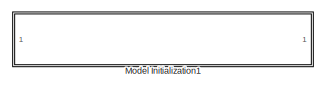
[diagram: root canvas - part 1/2, top center region]
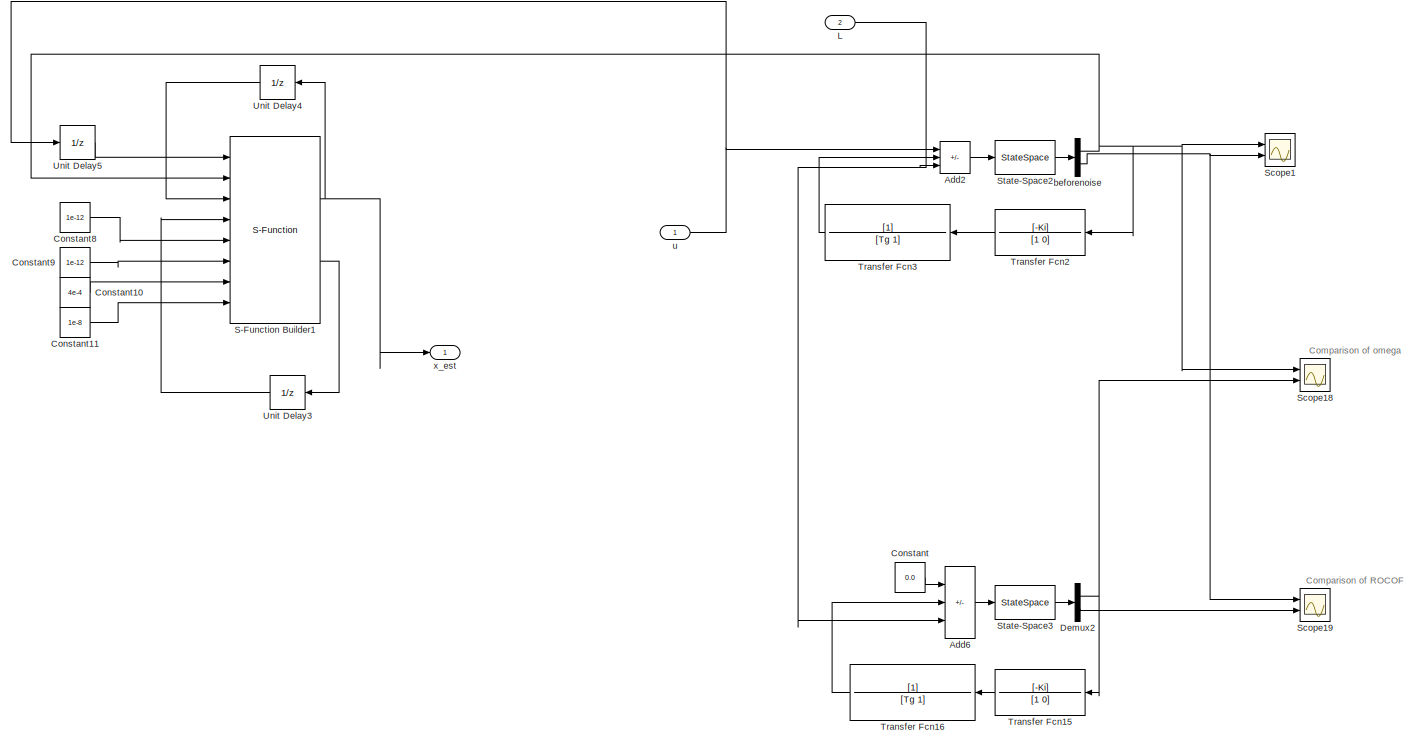
[diagram: root canvas - part 2/2, most of the canvas]
MODEL slx_1f61be367522
KIND model
CONFIG AbsTol = auto
CONFIG EnableMultiTasking = off
CONFIG FixedStep = auto
CONFIG InitFcn = M = 4; D = 1.5/100; Rp = 0.05; Tg = 0.2; Ki = 1.8;
CONFIG MaxStep = 1e-3
CONFIG MinStep = auto
CONFIG RelTol = 1e-3
CONFIG SampleTimeConstraint = Unconstrained
CONFIG SolverName = FixedStepAuto
CONFIG StartTime = 0.0
CONFIG StopTime = 100
BLOCK [Sum] Add2
  IconShape = rectangular
  Inputs = ++-
  Ports = [3, 1]
BLOCK [Sum] Add6
  IconShape = rectangular
  Inputs = ++-
  Ports = [3, 1]
BLOCK [Constant] Constant
  Value = 0.0
BLOCK [Constant] Constant10
  Value = 4e-4
BLOCK [Constant] Constant11
  Value = 1e-8
BLOCK [Constant] Constant8
  Value = 1e-12
BLOCK [Constant] Constant9
  Value = 1e-12
BLOCK [Demux] Demux2
  Outputs = 2
  Ports = [1, 2]
BLOCK [Inport] L
  Port = 2
BLOCK [SubSystem] Model Initialization1
  CopyFcn = set_param(gcb,'LinkStatus','inactive')
  Ports = []
  RequestExecContextInheritance = off
BLOCK [S-Function] S-Function Builder1
  CopyFcn = set_param(gcbh,'LinkStatus','none')
  EnableBusSupport = off
  FunctionName = KF_Sfun
  InitFcn = try, set_param(gcb,'FunctionName','KF_Sfun'), end
  OpenFcn = sfunctionwizard(gcbh)
  Ports = [8, 2]
  PreSaveFcn = try, set_param(gcb,'FunctionName','KF_Sfun'), end
  SFcnIsStateOwnerBlock = off
  SFunctionDeploymentMode = off
  SFunctionModules = KF_Sfun_wrapper EKF_Func EKF_Func_Call
BLOCK [Scope] Scope1
  Floating = off
  NumInputPorts = 2
  Ports = [2]
  ScopeSpecificationString = Simulink.scopes.TimeScopeBlockCfg('CurrentConfiguration', extmgr.ConfigurationSet(extmgr.Configuration('Core','General UI',true),extmgr.Configuration('Core','Source UI',true),extmgr.Configuration('Sources','WiredSimulink',true,'DataLoggingVariableName','ScopeData1'),extmgr.Configuration('Visuals','Time Domain',true,'SerializedDisplays',{struct('MinYLimReal','-0.04429','MaxYLimReal','0.00465','YLab...<+1689ch>
BLOCK [Scope] Scope18
  Floating = off
  NumInputPorts = 2
  Ports = [2]
  ScopeSpecificationString = Simulink.scopes.TimeScopeBlockCfg('CurrentConfiguration', extmgr.ConfigurationSet(extmgr.Configuration('Core','General UI',true),extmgr.Configuration('Core','Source UI',true),extmgr.Configuration('Sources','WiredSimulink',true,'DataLoggingVariableName','ScopeData2'),extmgr.Configuration('Visuals','Time Domain',true,'SerializedDisplays',{struct('MinYLimReal','-0.01949','MaxYLimReal','-0.01843','YLa...<+1714ch>
BLOCK [Scope] Scope19
  Floating = off
  NumInputPorts = 2
  Ports = [2]
  ScopeSpecificationString = Simulink.scopes.TimeScopeBlockCfg('CurrentConfiguration', extmgr.ConfigurationSet(extmgr.Configuration('Core','General UI',true),extmgr.Configuration('Core','Source UI',true),extmgr.Configuration('Sources','WiredSimulink',true,'DataLoggingVariableName','ScopeData3'),extmgr.Configuration('Visuals','Time Domain',true,'SerializedDisplays',{struct('MinYLimReal','-0.11763','MaxYLimReal','0.03534','YLab...<+1685ch>
BLOCK [StateSpace] State-Space2
  A = [0 1;-(D/(M*Tg)+1/(Rp*M*Tg)) -(D/M + 1/Tg)]
  B = [0;1/(M*Tg)]
  C = eye(2)
  D = zeros(2,1)
  InitialCondition = 0
  Ports = [1, 1]
BLOCK [StateSpace] State-Space3
  A = [0 1;-(D/(M*Tg)+1/(Rp*M*Tg)) -(D/M + 1/Tg)]
  B = [0;1/(M*Tg)]
  C = eye(2)
  D = zeros(2,1)
  InitialCondition = 0
  Ports = [1, 1]
BLOCK [TransferFcn] Transfer Fcn15
  Denominator = [1 0]
  NameLocation = top
  Numerator = [-Ki]
BLOCK [TransferFcn] Transfer Fcn16
  Denominator = [Tg 1]
  NameLocation = top
BLOCK [TransferFcn] Transfer Fcn2
  Denominator = [1 0]
  NameLocation = top
  Numerator = [-Ki]
BLOCK [TransferFcn] Transfer Fcn3
  Denominator = [Tg 1]
  NameLocation = top
BLOCK [UnitDelay] Unit Delay3
  HasFrameUpgradeWarning = on
  InitialCondition = 1*diag([1, 1, 1])
  SampleTime = 0.02
BLOCK [UnitDelay] Unit Delay4
  HasFrameUpgradeWarning = on
  SampleTime = 0.02
BLOCK [UnitDelay] Unit Delay5
  HasFrameUpgradeWarning = on
  SampleTime = 0.02
BLOCK [Demux] beforenoise
  Outputs = 2
  Ports = [1, 2]
BLOCK [Inport] u
BLOCK [Outport] x_est
ANNOTATION (root): Comparison of ROCOF
ANNOTATION (root): Comparison of omega
LINE Add2:1 -> State-Space2:1
LINE Add6:1 -> State-Space3:1
LINE Constant10:1 -> S-Function Builder1:7
LINE Constant11:1 -> S-Function Builder1:8
LINE Constant8:1 -> S-Function Builder1:5
LINE Constant9:1 -> S-Function Builder1:6
LINE Constant:1 -> Add6:1
NET Demux2:1 -> Scope18:2, Transfer Fcn15:1
LINE Demux2:2 -> Scope19:2
NET L:1 -> Add2:3, Add6:3
NET S-Function Builder1:1 -> Unit Delay4:1, x_est:1
LINE S-Function Builder1:2 -> Unit Delay3:1
LINE State-Space2:1 -> beforenoise:1
LINE State-Space3:1 -> Demux2:1
LINE Transfer Fcn15:1 -> Transfer Fcn16:1
LINE Transfer Fcn16:1 -> Add6:2
LINE Transfer Fcn2:1 -> Transfer Fcn3:1
LINE Transfer Fcn3:1 -> Add2:2
LINE Unit Delay3:1 -> S-Function Builder1:4
LINE Unit Delay4:1 -> S-Function Builder1:3
LINE Unit Delay5:1 -> S-Function Builder1:1
NET beforenoise:1 -> S-Function Builder1:2, Scope18:1, Scope1:1, Transfer Fcn2:1
NET beforenoise:2 -> Scope19:1, Scope1:2
NET u:1 -> Add2:1, Unit Delay5:1
note: NET lines group one-source signal fan-out (src -> all destinations, sorted); 1:1 wires keep LINE
